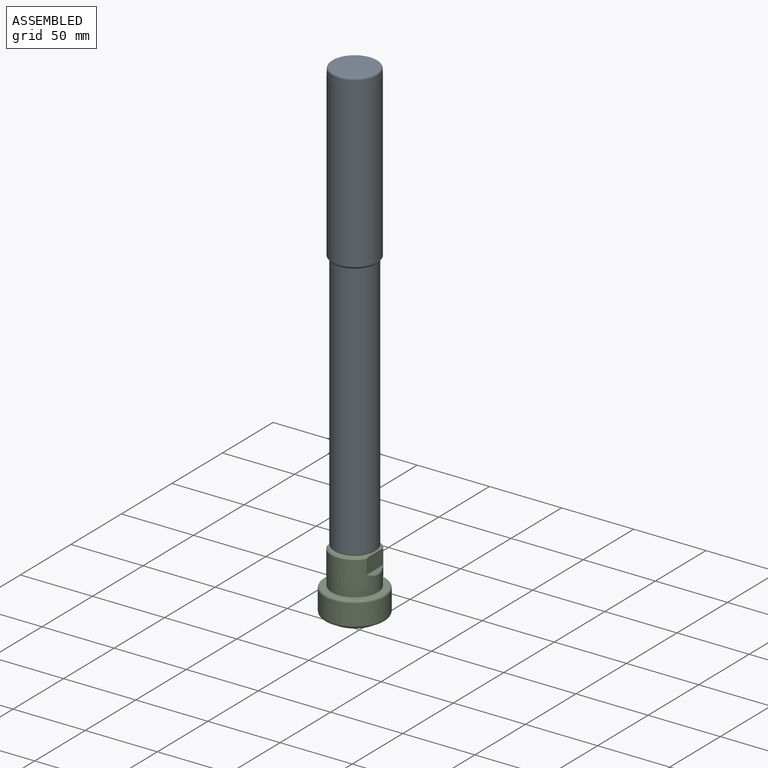
[diagram: assembled view]
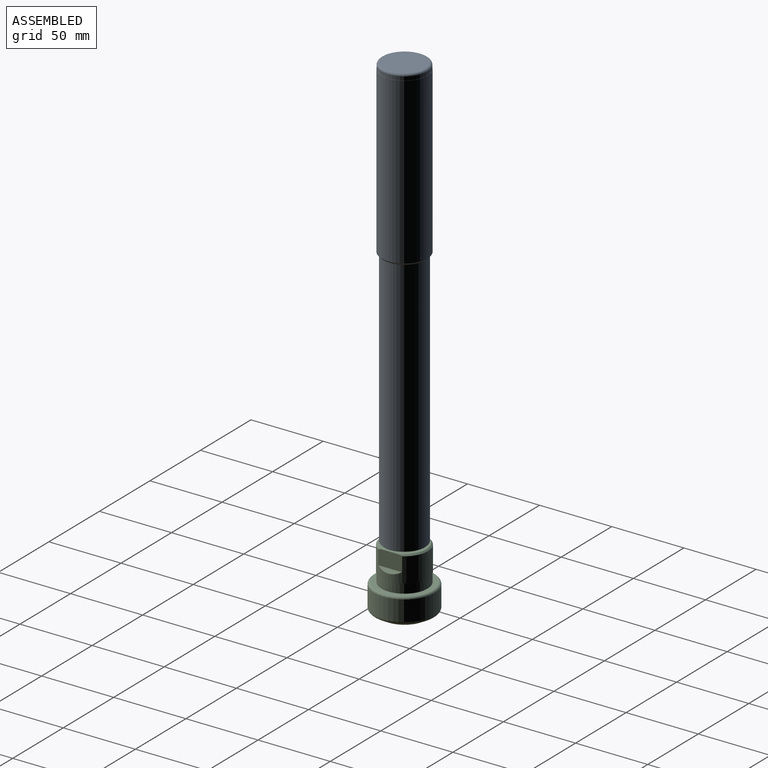
[diagram: assembled view, second angle]
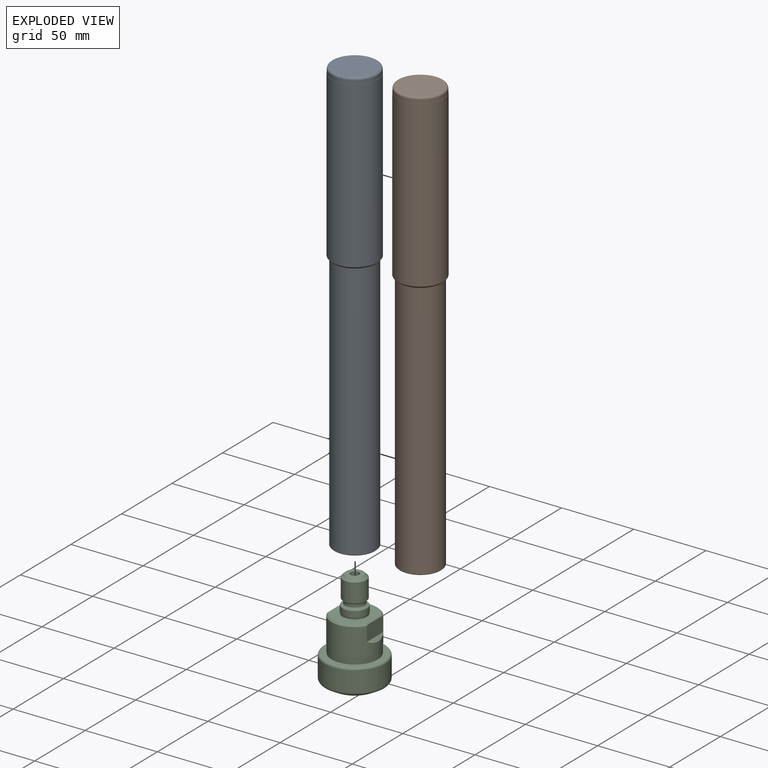
[diagram: exploded view]
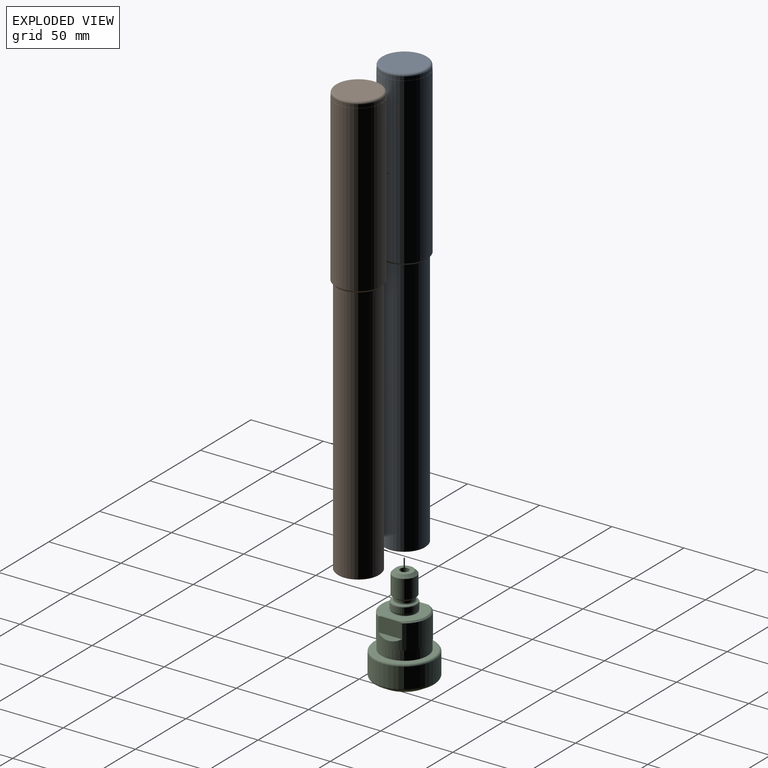
[diagram: exploded view, second angle]
ASSEMBLY  parts=3 mates=2
PART A: 9 faces, bbox 33.7x33x300 mm
  f0: torus R=14.38mm, axis (0,0,1), area 227mm2, adj f1,f2
  f1: plane 28.75x28.75mm, normal (0,0,1), area 649.2mm2, adj f0
  f2: cylinder r=15.88mm len=31.75mm, axis (0,0,1), area 249.4mm2, adj f0,f3
  f3: plane 32x32mm, normal (0,0,1), area 12.5mm2, adj f2,f4
  f4: cylinder r=16mm len=114.5mm, axis (0,0,1), area 11510.8mm2, adj f3,f5
  f5: cone r=14.5mm half-angle=45deg, axis (0,0,1), area 203.3mm2, adj f4,f6
  f6: cylinder r=14.5mm len=179.5mm, axis (0,0,1), area 16353.6mm2, adj f5,f7
  f7: cone r=14mm half-angle=45deg, axis (0,0,1), area 63.3mm2, adj f6,f8
  f8: plane 28x28mm, normal (0,0,-1), area 615.8mm2, adj f7
PART B: same geometry as A
PART C: 44 faces, bbox 43.6x43.6x69.5 mm
  f0: cylinder r=16.2mm len=32.4mm, axis (0,0,-1), area 1338.9mm2, adj f1,f2,f3,f4,f5,f8,f9
  f1: cone r=15.2mm half-angle=45deg, axis (0,0,-1), area 48.2mm2, adj f0,f4,f6,f7,f8,f11
  f2: plane 32.4x32.4mm, normal (0,0,-1), area 20.2mm2, adj f0,f10
  f3: cone r=15.2mm half-angle=45deg, axis (0,0,-1), area 48.2mm2, adj f0,f4,f6,f7,f8,f11
  f4: plane 16.33x10.52mm, normal (-1,0,0), area 170.7mm2, adj f0,f1,f3,f5,f6
  f5: plane 16.3x2.2mm, normal (-0.71,0,0.71), area 34.3mm2, adj f0,f4
  f6: plane 14.21x0.5mm, normal (-0.71,0,0.71), area 10mm2, adj f1,f3,f4,f7
  f7: plane 30.4x27mm, normal (0,0,1), area 419.2mm2, adj f1,f3,f6,f11,f12
  f8: plane 16.33x10.52mm, normal (1,0,0), area 170.7mm2, adj f0,f1,f3,f9,f11
  f9: plane 16.3x2.2mm, normal (0.71,0,0.71), area 34.3mm2, adj f0,f8
  f10: cylinder r=16mm len=32mm, axis (0,0,-1), area 653.5mm2, adj f2,f13
  f11: plane 14.21x0.5mm, normal (0.71,0,0.71), area 10mm2, adj f1,f3,f7,f8
  f12: cone r=8.87mm half-angle=70deg, axis (0,0,1), area 29.4mm2, adj f7,f14
  f13: plane 39x39mm, normal (0,0,1), area 390.3mm2, adj f10,f15
  f14: torus R=8.73mm, axis (0,0,1), area 7.7mm2, adj f12,f16
  f15: torus R=19.5mm, axis (0,0,1), area 302.8mm2, adj f13,f17
  f16: plane 17.46x17.46mm, normal (0,0,1), area 7.1mm2, adj f14,f18
  f17: cylinder r=21mm len=42mm, axis (0,0,1), area 1831.6mm2, adj f15,f19
  f18: torus R=8.6mm, axis (0,0,1), area 32.9mm2, adj f16,f20
  f19: torus R=19mm, axis (0,0,1), area 271.8mm2, adj f17,f21
  f20: cylinder r=8.2mm len=16.4mm, axis (0,0,1), area 19.2mm2, adj f18,f22
  f21: cone r=15.46mm half-angle=60deg, axis (0,0,1), area 583.5mm2, adj f19,f23
  f22: torus R=8.6mm, axis (0,0,1), area 10.8mm2, adj f20,f24
  f23: torus R=14.46mm, axis (0,0,1), area 98.5mm2, adj f21,f25
  f24: cone r=8.25mm half-angle=30deg, axis (0,0,1), area 25.9mm2, adj f22,f26
  f25: plane 28.93x28.93mm, normal (0,0,-1), area 317.5mm2, adj f23,f27
  f26: cylinder r=8.5mm len=17mm, axis (0,0,1), area 224.3mm2, adj f24,f28
  f27: cylinder r=10.4mm len=20.8mm, axis (0,0,1), area 32mm2, adj f25,f29
  f28: cone r=8.21mm half-angle=30deg, axis (0,0,-1), area 30.3mm2, adj f26,f30
  f29: cone r=10.4mm half-angle=30deg, axis (0,0,1), area 302.2mm2, adj f27,f31
  f30: plane 16.42x16.42mm, normal (0,0,1), area 25.6mm2, adj f28,f32
  f31: cylinder r=12.5mm len=25mm, axis (0,0,-1), area 618.3mm2, adj f29,f33
  f32: torus R=7.7mm, axis (0,0,1), area 82.1mm2, adj f30,f34
  f33: cone r=9mm half-angle=8deg, axis (0,0,-1), area 1698.6mm2, adj f31,f35
  f34: cylinder r=6.5mm len=13mm, axis (0,0,1), area 51.9mm2, adj f32,f36
  f35: cylinder r=9mm len=18mm, axis (0,0,-1), area 231.6mm2, adj f33,f37
  f36: torus R=7.7mm, axis (0,0,1), area 53mm2, adj f34,f38
  f37: cone r=2.75mm half-angle=70deg, axis (0,0,-1), area 270.8mm2, adj f35
  f38: cone r=7.1mm half-angle=60deg, axis (0,0,1), area 46.4mm2, adj f36,f39
  f39: cylinder r=7.95mm len=15.9mm, axis (0,0,1), area 654.4mm2, adj f38,f40
  f40: cone r=5.95mm half-angle=45deg, axis (0,0,-1), area 123.5mm2, adj f39,f41
  f41: plane 11.9x11.9mm, normal (0,0,1), area 82.9mm2, adj f40,f42
  f42: cylinder r=3mm len=6mm, axis (0,0,1), area 56.5mm2, adj f41,f43
  f43: plane 6x6mm, normal (0,0,1), area 28.3mm2, adj f42
PLACE A t=(96.46,28.99,57.95)mm
PLACE B t=(96.46,28.99,57.95)mm
PLACE C t=(96.46,28.99,-190.82)mm
MATE fastened C.f40 <-> A.f0  axis (0,0,1) through (96.46,28.99,-190.05)mm
MATE cylindrical C.f40 <-> A.f0  axis (0,0,1) through (96.46,28.99,-167.82)mm
